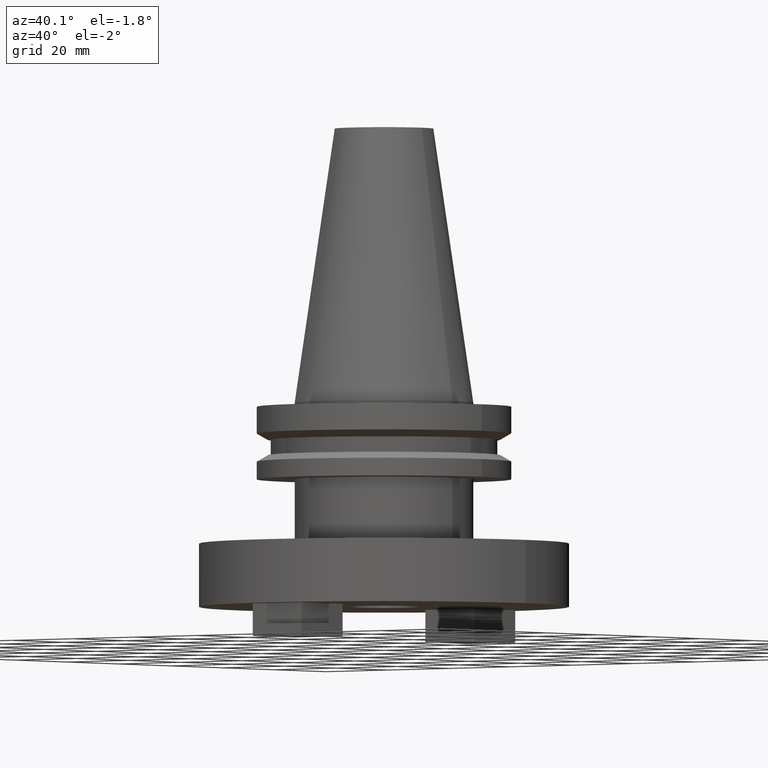
[diagram: clean part render]
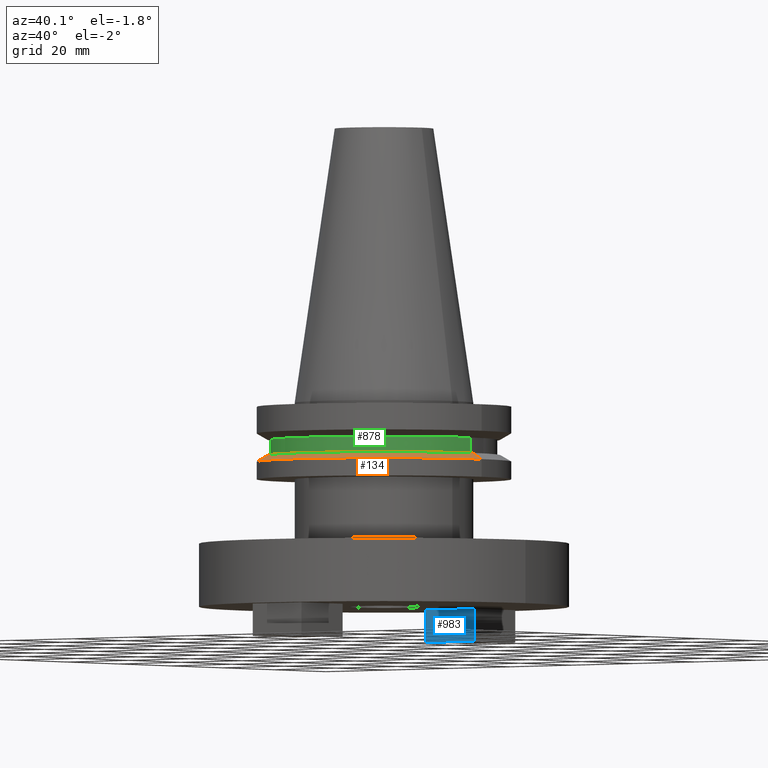
[diagram: same view with three faces highlighted in distinct colors, each labeled with its STEP entity id]
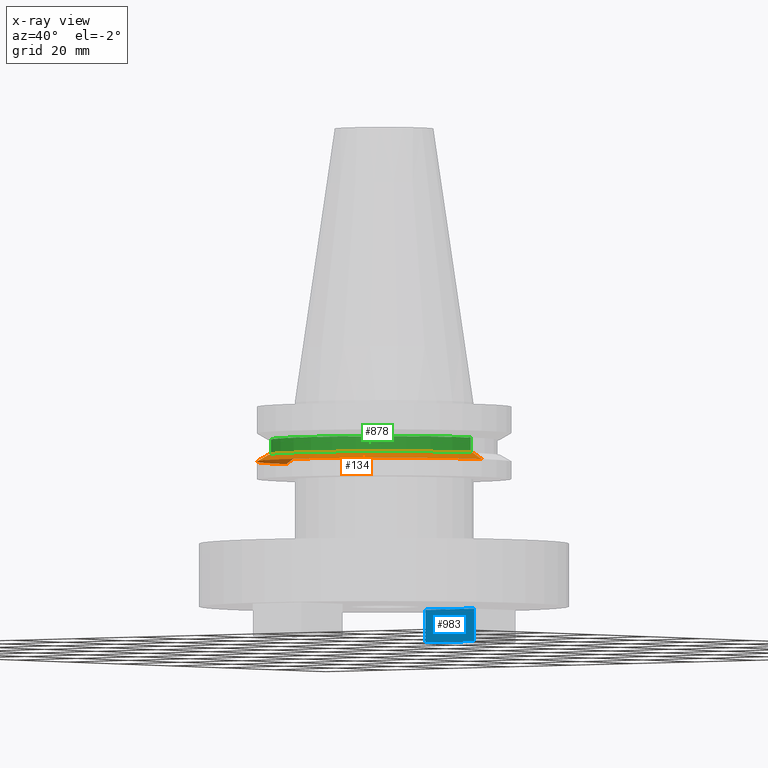
[diagram: x-ray of the same camera — body ghosted, the three highlighted faces saturated]
A machine part, auxiliary view with three faces highlighted in distinct colors.
The next image is the same camera in x-ray (body ghosted, the three faces saturated) — at least one of them is partly hidden behind the body in this view.
Their STEP definitions:

[orange] entity #134 — the highlighted conical surface has half-angle 60 deg.
#89 = CIRCLE ( 'NONE', #686, 28.97919780457008088 ) ;
#121 = EDGE_CURVE ( 'NONE', #229, #1046, #401, .T. ) ;
#134 = ADVANCED_FACE ( 'NONE', ( #346 ), #338, .T. ) ;
#178 = DIRECTION ( 'NONE',  ( 1.000000000000000000, 0.000000000000000000, 0.000000000000000000 ) ) ;
#223 = DIRECTION ( 'NONE',  ( -0.8660254037844387076, 0.000000000000000000, -0.4999999999999998890 ) ) ;
#229 = VERTEX_POINT ( 'NONE', #806 ) ;
#239 = LINE ( 'NONE', #1088, #557 ) ;
#266 = CARTESIAN_POINT ( 'NONE',  ( 0.000000000000000000, 0.000000000000000000, -14.65472339340266572 ) ) ;
#285 = VECTOR ( 'NONE', #223, 1000.000000000000000 ) ;
#308 = DIRECTION ( 'NONE',  ( 0.8660254037844387076, 1.060575238724906915E-16, -0.4999999999999998890 ) ) ;
#338 = CONICAL_SURFACE ( 'NONE', #611, 31.75000000000000000, 1.047197551196597853 ) ;
#340 = DIRECTION ( 'NONE',  ( -0.000000000000000000, -0.000000000000000000, 1.000000000000000000 ) ) ;
#346 = FACE_OUTER_BOUND ( 'NONE', #811, .T. ) ;
#356 = EDGE_CURVE ( 'NONE', #375, #1046, #239, .T. ) ;
#375 = VERTEX_POINT ( 'NONE', #1073 ) ;
#399 = EDGE_CURVE ( 'NONE', #917, #375, #89, .T. ) ;
#401 = CIRCLE ( 'NONE', #472, 31.75000000000000000 ) ;
#470 = ORIENTED_EDGE ( 'NONE', *, *, #121, .T. ) ;
#472 = AXIS2_PLACEMENT_3D ( 'NONE', #842, #690, #773 ) ;
#557 = VECTOR ( 'NONE', #308, 1000.000000000000000 ) ;
#566 = CARTESIAN_POINT ( 'NONE',  ( -31.75000000000000000, 0.000000000000000000, -14.65472339340266572 ) ) ;
#611 = AXIS2_PLACEMENT_3D ( 'NONE', #266, #789, #695 ) ;
#658 = ORIENTED_EDGE ( 'NONE', *, *, #399, .F. ) ;
#686 = AXIS2_PLACEMENT_3D ( 'NONE', #699, #340, #178 ) ;
#690 = DIRECTION ( 'NONE',  ( -0.000000000000000000, -0.000000000000000000, 1.000000000000000000 ) ) ;
#695 = DIRECTION ( 'NONE',  ( -1.000000000000000000, 0.000000000000000000, 0.000000000000000000 ) ) ;
#699 = CARTESIAN_POINT ( 'NONE',  ( 0.000000000000000000, 0.000000000000000000, -13.05499999999999794 ) ) ;
#773 = DIRECTION ( 'NONE',  ( 1.000000000000000000, 0.000000000000000000, 0.000000000000000000 ) ) ;
#775 = ORIENTED_EDGE ( 'NONE', *, *, #846, .T. ) ;
#789 = DIRECTION ( 'NONE',  ( 0.000000000000000000, 0.000000000000000000, -1.000000000000000000 ) ) ;
#798 = ORIENTED_EDGE ( 'NONE', *, *, #356, .F. ) ;
#801 = CARTESIAN_POINT ( 'NONE',  ( 31.75000000000000000, 0.000000000000000000, -14.65472339340266572 ) ) ;
#806 = CARTESIAN_POINT ( 'NONE',  ( -31.75000000000000000, 3.888253587292846476E-15, -14.65472339340266572 ) ) ;
#811 = EDGE_LOOP ( 'NONE', ( #798, #658, #775, #470 ) ) ;
#842 = CARTESIAN_POINT ( 'NONE',  ( 0.000000000000000000, 0.000000000000000000, -14.65472339340266572 ) ) ;
#846 = EDGE_CURVE ( 'NONE', #917, #229, #1059, .T. ) ;
#917 = VERTEX_POINT ( 'NONE', #929 ) ;
#929 = CARTESIAN_POINT ( 'NONE',  ( -28.97919780457008088, 0.000000000000000000, -13.05499999999999794 ) ) ;
#1046 = VERTEX_POINT ( 'NONE', #801 ) ;
#1059 = LINE ( 'NONE', #566, #285 ) ;
#1073 = CARTESIAN_POINT ( 'NONE',  ( 28.97919780457008088, 3.718590885307660666E-15, -13.05499999999999794 ) ) ;
#1088 = CARTESIAN_POINT ( 'NONE',  ( 31.75000000000000000, 3.888253587292846476E-15, -14.65472339340266572 ) ) ;

[blue] entity #983 — the highlighted planar face has unit normal (0, 1, 0).
#6 = PLANE ( 'NONE',  #944 ) ;
#15 = VERTEX_POINT ( 'NONE', #758 ) ;
#20 = LINE ( 'NONE', #475, #653 ) ;
#42 = CARTESIAN_POINT ( 'NONE',  ( 7.937500000000003553, 25.40249999999999986, -58.88000000000000256 ) ) ;
#73 = LINE ( 'NONE', #562, #86 ) ;
#74 = CARTESIAN_POINT ( 'NONE',  ( 7.937500000000003553, 25.40249999999999986, -50.79999999999999716 ) ) ;
#86 = VECTOR ( 'NONE', #591, 1000.000000000000000 ) ;
#101 = EDGE_CURVE ( 'NONE', #15, #974, #73, .T. ) ;
#103 = ORIENTED_EDGE ( 'NONE', *, *, #1038, .F. ) ;
#110 = ORIENTED_EDGE ( 'NONE', *, *, #852, .T. ) ;
#136 = ORIENTED_EDGE ( 'NONE', *, *, #233, .F. ) ;
#177 = VECTOR ( 'NONE', #473, 1000.000000000000000 ) ;
#183 = VERTEX_POINT ( 'NONE', #782 ) ;
#233 = EDGE_CURVE ( 'NONE', #15, #622, #479, .T. ) ;
#267 = VECTOR ( 'NONE', #498, 1000.000000000000000 ) ;
#290 = DIRECTION ( 'NONE',  ( -0.000000000000000000, -0.000000000000000000, 1.000000000000000000 ) ) ;
#325 = CARTESIAN_POINT ( 'NONE',  ( 7.937500000000003553, 25.40249999999999986, -50.79999999999999716 ) ) ;
#430 = DIRECTION ( 'NONE',  ( 0.000000000000000000, 1.000000000000000000, 0.000000000000000000 ) ) ;
#463 = ORIENTED_EDGE ( 'NONE', *, *, #101, .T. ) ;
#473 = DIRECTION ( 'NONE',  ( -1.000000000000000000, 0.000000000000000000, 0.000000000000000000 ) ) ;
#475 = CARTESIAN_POINT ( 'NONE',  ( -7.937499999999996447, 25.40249999999999986, -58.88000000000000256 ) ) ;
#479 = LINE ( 'NONE', #42, #177 ) ;
#498 = DIRECTION ( 'NONE',  ( -1.000000000000000000, 0.000000000000000000, 0.000000000000000000 ) ) ;
#562 = CARTESIAN_POINT ( 'NONE',  ( 7.937500000000003553, 25.40249999999999986, -58.88000000000000256 ) ) ;
#591 = DIRECTION ( 'NONE',  ( -0.000000000000000000, -0.000000000000000000, 1.000000000000000000 ) ) ;
#605 = CARTESIAN_POINT ( 'NONE',  ( 7.937500000000003553, 25.40249999999999986, -58.88000000000000256 ) ) ;
#622 = VERTEX_POINT ( 'NONE', #952 ) ;
#653 = VECTOR ( 'NONE', #290, 1000.000000000000000 ) ;
#758 = CARTESIAN_POINT ( 'NONE',  ( 7.937500000000003553, 25.40249999999999986, -58.88000000000000256 ) ) ;
#759 = FACE_OUTER_BOUND ( 'NONE', #839, .T. ) ;
#782 = CARTESIAN_POINT ( 'NONE',  ( -7.937499999999996447, 25.40249999999999986, -50.79999999999999716 ) ) ;
#821 = LINE ( 'NONE', #325, #267 ) ;
#839 = EDGE_LOOP ( 'NONE', ( #110, #103, #136, #463 ) ) ;
#852 = EDGE_CURVE ( 'NONE', #974, #183, #821, .T. ) ;
#934 = DIRECTION ( 'NONE',  ( 0.000000000000000000, -0.000000000000000000, 1.000000000000000000 ) ) ;
#944 = AXIS2_PLACEMENT_3D ( 'NONE', #605, #430, #934 ) ;
#952 = CARTESIAN_POINT ( 'NONE',  ( -7.937499999999996447, 25.40249999999999986, -58.88000000000000256 ) ) ;
#974 = VERTEX_POINT ( 'NONE', #74 ) ;
#983 = ADVANCED_FACE ( 'NONE', ( #759 ), #6, .F. ) ;
#1038 = EDGE_CURVE ( 'NONE', #622, #183, #20, .T. ) ;

[green] entity #878 — the highlighted cylindrical surface (partial cylindrical patch) has radius 28.18 mm, axis along (-0, -0, 1).
#4 = VECTOR ( 'NONE', #994, 1000.000000000000000 ) ;
#9 = CARTESIAN_POINT ( 'NONE',  ( 28.17999999999999972, 0.000000000000000000, -13.05499999999999794 ) ) ;
#46 = ORIENTED_EDGE ( 'NONE', *, *, #66, .F. ) ;
#66 = EDGE_CURVE ( 'NONE', #850, #199, #574, .T. ) ;
#88 = EDGE_CURVE ( 'NONE', #525, #199, #763, .T. ) ;
#97 = ORIENTED_EDGE ( 'NONE', *, *, #88, .T. ) ;
#135 = CARTESIAN_POINT ( 'NONE',  ( -28.17999999999999972, 3.451054679997241634E-15, -9.204999999999991189 ) ) ;
#190 = CARTESIAN_POINT ( 'NONE',  ( 0.000000000000000000, 0.000000000000000000, -13.05499999999999794 ) ) ;
#199 = VERTEX_POINT ( 'NONE', #221 ) ;
#221 = CARTESIAN_POINT ( 'NONE',  ( 28.17999999999999972, 0.000000000000000000, -9.204999999999991189 ) ) ;
#278 = LINE ( 'NONE', #552, #286 ) ;
#286 = VECTOR ( 'NONE', #624, 1000.000000000000000 ) ;
#294 = DIRECTION ( 'NONE',  ( -0.000000000000000000, -0.000000000000000000, 1.000000000000000000 ) ) ;
#311 = CARTESIAN_POINT ( 'NONE',  ( 0.000000000000000000, 0.000000000000000000, 68.25000000000000000 ) ) ;
#328 = CARTESIAN_POINT ( 'NONE',  ( 28.17999999999999972, 0.000000000000000000, 68.25000000000000000 ) ) ;
#435 = ORIENTED_EDGE ( 'NONE', *, *, #654, .T. ) ;
#519 = DIRECTION ( 'NONE',  ( 1.000000000000000000, 0.000000000000000000, 0.000000000000000000 ) ) ;
#525 = VERTEX_POINT ( 'NONE', #9 ) ;
#542 = EDGE_LOOP ( 'NONE', ( #877, #435, #97, #46 ) ) ;
#552 = CARTESIAN_POINT ( 'NONE',  ( -28.17999999999999972, 3.451054679997241634E-15, 68.25000000000000000 ) ) ;
#564 = DIRECTION ( 'NONE',  ( 1.000000000000000000, 0.000000000000000000, 0.000000000000000000 ) ) ;
#574 = CIRCLE ( 'NONE', #1007, 28.17999999999999972 ) ;
#588 = CYLINDRICAL_SURFACE ( 'NONE', #805, 28.17999999999999972 ) ;
#613 = AXIS2_PLACEMENT_3D ( 'NONE', #190, #809, #564 ) ;
#624 = DIRECTION ( 'NONE',  ( -0.000000000000000000, -0.000000000000000000, 1.000000000000000000 ) ) ;
#654 = EDGE_CURVE ( 'NONE', #922, #525, #1010, .T. ) ;
#669 = FACE_OUTER_BOUND ( 'NONE', #542, .T. ) ;
#679 = CARTESIAN_POINT ( 'NONE',  ( -28.17999999999999972, 3.451054679997241634E-15, -13.05499999999999794 ) ) ;
#740 = DIRECTION ( 'NONE',  ( 1.000000000000000000, 0.000000000000000000, 0.000000000000000000 ) ) ;
#763 = LINE ( 'NONE', #328, #4 ) ;
#805 = AXIS2_PLACEMENT_3D ( 'NONE', #311, #996, #740 ) ;
#809 = DIRECTION ( 'NONE',  ( -0.000000000000000000, -0.000000000000000000, 1.000000000000000000 ) ) ;
#850 = VERTEX_POINT ( 'NONE', #135 ) ;
#877 = ORIENTED_EDGE ( 'NONE', *, *, #1064, .F. ) ;
#878 = ADVANCED_FACE ( 'NONE', ( #669 ), #588, .T. ) ;
#922 = VERTEX_POINT ( 'NONE', #679 ) ;
#994 = DIRECTION ( 'NONE',  ( -0.000000000000000000, -0.000000000000000000, 1.000000000000000000 ) ) ;
#996 = DIRECTION ( 'NONE',  ( -0.000000000000000000, -0.000000000000000000, 1.000000000000000000 ) ) ;
#1007 = AXIS2_PLACEMENT_3D ( 'NONE', #1074, #294, #519 ) ;
#1010 = CIRCLE ( 'NONE', #613, 28.17999999999999972 ) ;
#1064 = EDGE_CURVE ( 'NONE', #922, #850, #278, .T. ) ;
#1074 = CARTESIAN_POINT ( 'NONE',  ( 0.000000000000000000, 0.000000000000000000, -9.204999999999991189 ) ) ;